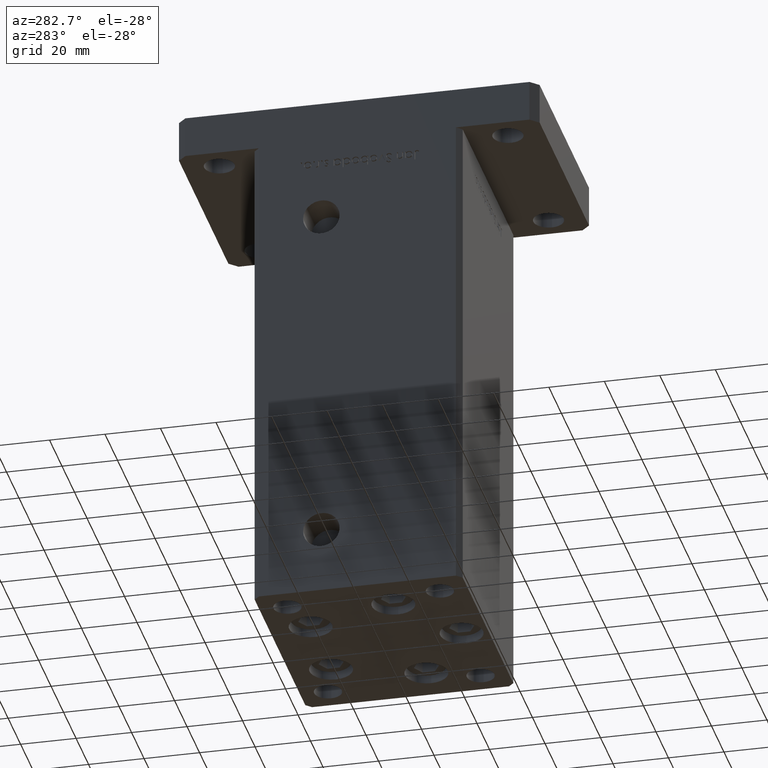
[diagram: clean part render]
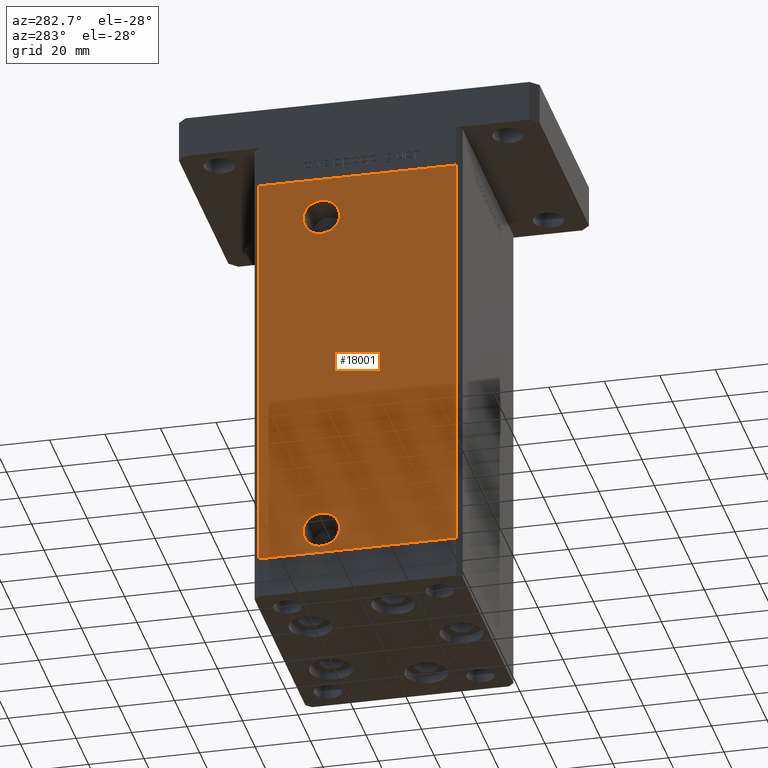
[diagram: same view with one face highlighted and labeled with its STEP entity id]
A machine part, auxiliary view. The second image highlights one B-rep face of the part: STEP entity #18001.
In plain terms, the highlighted planar face has unit normal (1, 0, 0).
Its self-contained STEP definition (entity closure, byte-faithful):
#151 = DIRECTION ( 'NONE',  ( 0.000000000000000000, -1.000000000000000000, 0.000000000000000000 ) ) ;
#1073 = DIRECTION ( 'NONE',  ( 0.000000000000000000, -1.000000000000000000, 0.000000000000000000 ) ) ;
#1483 = CARTESIAN_POINT ( 'NONE',  ( -42.50000000000000711, 35.50000000000001421, 148.5000000000000000 ) ) ;
#1679 = DIRECTION ( 'NONE',  ( -0.000000000000000000, -0.000000000000000000, -1.000000000000000000 ) ) ;
#1870 = CARTESIAN_POINT ( 'NONE',  ( -42.49999999999999289, 13.00000000000000000, 133.5000000000000000 ) ) ;
#1957 = VERTEX_POINT ( 'NONE', #42709 ) ;
#1960 = AXIS2_PLACEMENT_3D ( 'NONE', #3557, #24405, #40946 ) ;
#2052 = LINE ( 'NONE', #6374, #9146 ) ;
#2336 = EDGE_CURVE ( 'NONE', #46452, #29313, #13661, .T. ) ;
#3557 = CARTESIAN_POINT ( 'NONE',  ( -42.49999999999999289, 13.00000000000000000, 133.5000000000000000 ) ) ;
#3955 = EDGE_LOOP ( 'NONE', ( #27014, #4882 ) ) ;
#4602 = FACE_OUTER_BOUND ( 'NONE', #21515, .T. ) ;
#4882 = ORIENTED_EDGE ( 'NONE', *, *, #18669, .F. ) ;
#5635 = ORIENTED_EDGE ( 'NONE', *, *, #37159, .F. ) ;
#6374 = CARTESIAN_POINT ( 'NONE',  ( -42.50000000000000711, 35.50000000000001421, 0.000000000000000000 ) ) ;
#6606 = CIRCLE ( 'NONE', #36912, 6.580000000000003624 ) ;
#8327 = CARTESIAN_POINT ( 'NONE',  ( -42.49999999999999289, 6.419999999999996376, 9.000000000000007105 ) ) ;
#9146 = VECTOR ( 'NONE', #15316, 1000.000000000000000 ) ;
#9587 = CARTESIAN_POINT ( 'NONE',  ( -42.50000000000000711, 35.50000000000001421, 148.5000000000000000 ) ) ;
#12094 = CARTESIAN_POINT ( 'NONE',  ( -42.49999999999999289, 13.00000000000000000, 9.000000000000007105 ) ) ;
#13277 = FACE_BOUND ( 'NONE', #44518, .T. ) ;
#13661 = LINE ( 'NONE', #9587, #24442 ) ;
#13849 = EDGE_CURVE ( 'NONE', #36613, #22966, #49719, .T. ) ;
#15135 = AXIS2_PLACEMENT_3D ( 'NONE', #12094, #49744, #19941 ) ;
#15283 = AXIS2_PLACEMENT_3D ( 'NONE', #49592, #17602, #21668 ) ;
#15316 = DIRECTION ( 'NONE',  ( 2.931927001650941360E-16, -1.000000000000000000, 0.000000000000000000 ) ) ;
#16081 = EDGE_CURVE ( 'NONE', #29313, #48297, #2052, .T. ) ;
#16153 = CARTESIAN_POINT ( 'NONE',  ( -42.49999999999999289, 13.00000000000000000, 9.000000000000007105 ) ) ;
#16665 = ORIENTED_EDGE ( 'NONE', *, *, #2336, .T. ) ;
#17155 = VERTEX_POINT ( 'NONE', #34921 ) ;
#17336 = PLANE ( 'NONE',  #15283 ) ;
#17602 = DIRECTION ( 'NONE',  ( 1.000000000000000000, 2.931927001650941360E-16, -0.000000000000000000 ) ) ;
#17757 = EDGE_CURVE ( 'NONE', #52480, #48297, #47998, .T. ) ;
#18001 = ADVANCED_FACE ( 'NONE', ( #33064, #13277, #4602 ), #17336, .F. ) ;
#18100 = CIRCLE ( 'NONE', #23274, 6.580000000000015170 ) ;
#18326 = VECTOR ( 'NONE', #30983, 1000.000000000000000 ) ;
#18669 = EDGE_CURVE ( 'NONE', #22966, #36613, #6606, .T. ) ;
#19253 = CARTESIAN_POINT ( 'NONE',  ( -42.49999999999998579, -35.50000000000000711, 148.5000000000000000 ) ) ;
#19941 = DIRECTION ( 'NONE',  ( 0.000000000000000000, -1.000000000000000000, 0.000000000000000000 ) ) ;
#21515 = EDGE_LOOP ( 'NONE', ( #25575, #46177, #36875, #16665 ) ) ;
#21668 = DIRECTION ( 'NONE',  ( -2.931927001650941360E-16, 1.000000000000000000, 0.000000000000000000 ) ) ;
#22208 = CARTESIAN_POINT ( 'NONE',  ( -42.49999999999998579, -35.50000000000000711, 0.000000000000000000 ) ) ;
#22966 = VERTEX_POINT ( 'NONE', #33699 ) ;
#23049 = ORIENTED_EDGE ( 'NONE', *, *, #51135, .F. ) ;
#23274 = AXIS2_PLACEMENT_3D ( 'NONE', #1870, #49658, #1073 ) ;
#24405 = DIRECTION ( 'NONE',  ( -1.000000000000000000, -2.275047181608927644E-16, 0.000000000000000000 ) ) ;
#24442 = VECTOR ( 'NONE', #38581, 1000.000000000000000 ) ;
#25325 = DIRECTION ( 'NONE',  ( -1.000000000000000000, -2.275047181608927644E-16, 0.000000000000000000 ) ) ;
#25575 = ORIENTED_EDGE ( 'NONE', *, *, #16081, .T. ) ;
#27014 = ORIENTED_EDGE ( 'NONE', *, *, #13849, .F. ) ;
#29313 = VERTEX_POINT ( 'NONE', #52256 ) ;
#30794 = VECTOR ( 'NONE', #1679, 1000.000000000000000 ) ;
#30983 = DIRECTION ( 'NONE',  ( 2.931927001650941360E-16, -1.000000000000000000, 0.000000000000000000 ) ) ;
#33064 = FACE_BOUND ( 'NONE', #3955, .T. ) ;
#33237 = CARTESIAN_POINT ( 'NONE',  ( -42.49999999999998579, -35.50000000000000711, 148.5000000000000000 ) ) ;
#33699 = CARTESIAN_POINT ( 'NONE',  ( -42.49999999999999289, 19.58000000000000540, 9.000000000000007105 ) ) ;
#34921 = CARTESIAN_POINT ( 'NONE',  ( -42.49999999999999289, 19.58000000000001251, 133.5000000000000000 ) ) ;
#36613 = VERTEX_POINT ( 'NONE', #8327 ) ;
#36875 = ORIENTED_EDGE ( 'NONE', *, *, #44142, .F. ) ;
#36912 = AXIS2_PLACEMENT_3D ( 'NONE', #16153, #25325, #151 ) ;
#37159 = EDGE_CURVE ( 'NONE', #17155, #1957, #18100, .T. ) ;
#38581 = DIRECTION ( 'NONE',  ( -0.000000000000000000, -0.000000000000000000, -1.000000000000000000 ) ) ;
#40946 = DIRECTION ( 'NONE',  ( 0.000000000000000000, -1.000000000000000000, 0.000000000000000000 ) ) ;
#41764 = CIRCLE ( 'NONE', #1960, 6.580000000000015170 ) ;
#42665 = LINE ( 'NONE', #1483, #18326 ) ;
#42709 = CARTESIAN_POINT ( 'NONE',  ( -42.49999999999999289, 6.419999999999983942, 133.5000000000000000 ) ) ;
#44142 = EDGE_CURVE ( 'NONE', #46452, #52480, #42665, .T. ) ;
#44518 = EDGE_LOOP ( 'NONE', ( #23049, #5635 ) ) ;
#46177 = ORIENTED_EDGE ( 'NONE', *, *, #17757, .F. ) ;
#46452 = VERTEX_POINT ( 'NONE', #48987 ) ;
#47998 = LINE ( 'NONE', #19253, #30794 ) ;
#48297 = VERTEX_POINT ( 'NONE', #22208 ) ;
#48987 = CARTESIAN_POINT ( 'NONE',  ( -42.50000000000000711, 35.50000000000001421, 148.5000000000000000 ) ) ;
#49592 = CARTESIAN_POINT ( 'NONE',  ( -42.50000000000000711, 35.50000000000001421, 148.5000000000000000 ) ) ;
#49658 = DIRECTION ( 'NONE',  ( -1.000000000000000000, -2.275047181608927644E-16, 0.000000000000000000 ) ) ;
#49719 = CIRCLE ( 'NONE', #15135, 6.580000000000003624 ) ;
#49744 = DIRECTION ( 'NONE',  ( -1.000000000000000000, -2.275047181608927644E-16, 0.000000000000000000 ) ) ;
#51135 = EDGE_CURVE ( 'NONE', #1957, #17155, #41764, .T. ) ;
#52256 = CARTESIAN_POINT ( 'NONE',  ( -42.50000000000000711, 35.50000000000001421, 0.000000000000000000 ) ) ;
#52480 = VERTEX_POINT ( 'NONE', #33237 ) ;